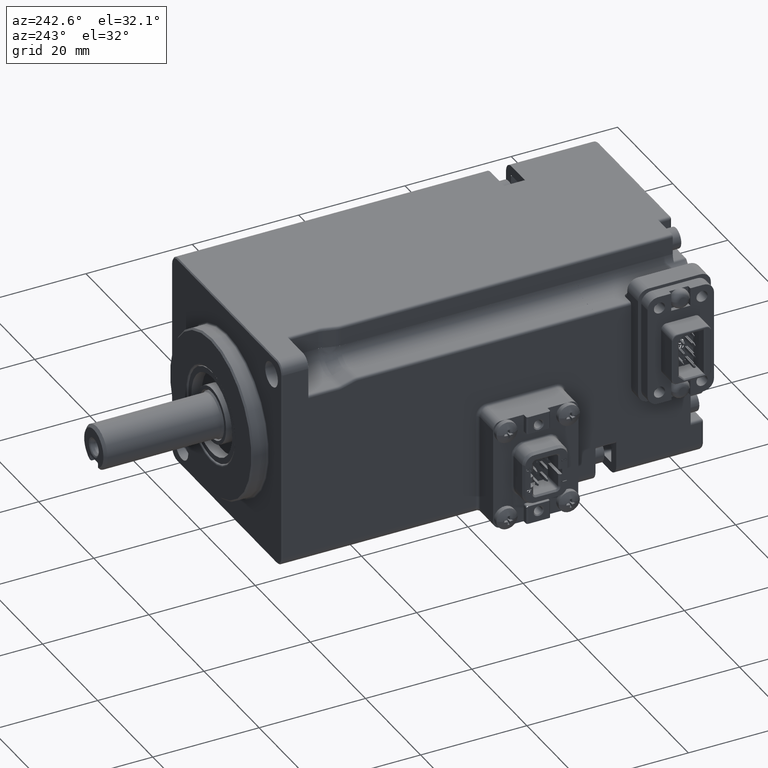
[diagram: clean part render]
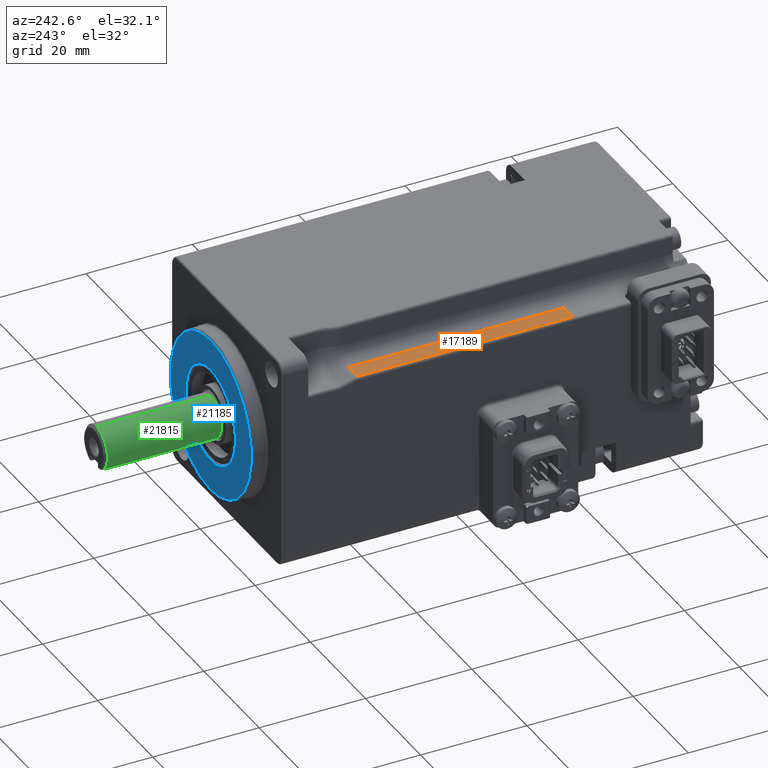
[diagram: same view with three faces highlighted in distinct colors, each labeled with its STEP entity id]
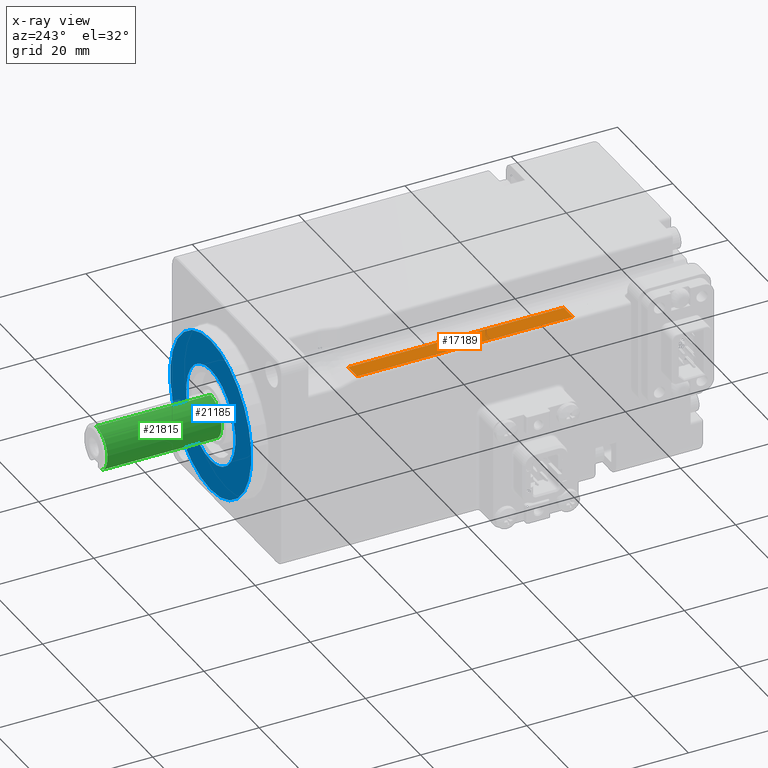
[diagram: x-ray of the same camera — body ghosted, the three highlighted faces saturated]
A machine part, auxiliary view with three faces highlighted in distinct colors.
The next image is the same camera in x-ray (body ghosted, the three faces saturated) — at least one of them is partly hidden behind the body in this view.
Their STEP definitions:

[orange] entity #17189 — the highlighted planar face has unit normal (0, 0, -1).
#49 = VERTEX_POINT ( 'NONE', #20849 ) ;
#589 = PLANE ( 'NONE',  #2665 ) ;
#941 = ORIENTED_EDGE ( 'NONE', *, *, #6150, .T. ) ;
#2293 = CARTESIAN_POINT ( 'NONE',  ( -16.26345596729059295, 5.000000000000004441, 13.50000000000000711 ) ) ;
#2466 = VECTOR ( 'NONE', #24351, 1000.000000000000000 ) ;
#2523 = VERTEX_POINT ( 'NONE', #5701 ) ;
#2665 = AXIS2_PLACEMENT_3D ( 'NONE', #2293, #10673, #14164 ) ;
#2795 = FACE_OUTER_BOUND ( 'NONE', #11733, .T. ) ;
#3090 = ORIENTED_EDGE ( 'NONE', *, *, #9576, .T. ) ;
#4329 = DIRECTION ( 'NONE',  ( 1.000000000000000000, 0.000000000000000000, 4.642588072805170962E-16 ) ) ;
#5701 = CARTESIAN_POINT ( 'NONE',  ( -19.50000000000000355, 0.000000000000000000, 13.50000000000000178 ) ) ;
#5926 = VERTEX_POINT ( 'NONE', #11231 ) ;
#6150 = EDGE_CURVE ( 'NONE', #5926, #49, #8954, .T. ) ;
#6868 = EDGE_CURVE ( 'NONE', #49, #7536, #14661, .T. ) ;
#6937 = CARTESIAN_POINT ( 'NONE',  ( -16.26345596729035847, 40.58792429793135170, 13.50000000000000711 ) ) ;
#7536 = VERTEX_POINT ( 'NONE', #7659 ) ;
#7659 = CARTESIAN_POINT ( 'NONE',  ( -19.50000000000000355, 40.58792429793137302, 13.50000000000000533 ) ) ;
#7691 = VECTOR ( 'NONE', #4329, 1000.000000000000000 ) ;
#8442 = CARTESIAN_POINT ( 'NONE',  ( 17.99999999999998934, 0.000000000000000000, 13.50000000000001954 ) ) ;
#8954 = LINE ( 'NONE', #24602, #2466 ) ;
#9576 = EDGE_CURVE ( 'NONE', #7536, #2523, #22353, .T. ) ;
#10584 = CARTESIAN_POINT ( 'NONE',  ( -19.50000000000000355, 5.000000000000004441, 13.50000000000000533 ) ) ;
#10673 = DIRECTION ( 'NONE',  ( 4.642588072805170962E-16, 0.000000000000000000, -1.000000000000000000 ) ) ;
#11231 = CARTESIAN_POINT ( 'NONE',  ( -16.26345596729059295, 0.000000000000000000, 13.50000000000000533 ) ) ;
#11733 = EDGE_LOOP ( 'NONE', ( #18944, #3090, #18710, #941 ) ) ;
#14164 = DIRECTION ( 'NONE',  ( -1.000000000000000000, 0.000000000000000000, -4.642588072805170962E-16 ) ) ;
#14661 = LINE ( 'NONE', #6937, #19351 ) ;
#16989 = DIRECTION ( 'NONE',  ( -1.000000000000000000, 6.648163704133970020E-15, -4.642588072805170962E-16 ) ) ;
#17189 = ADVANCED_FACE ( 'NONE', ( #2795 ), #589, .F. ) ;
#18253 = LINE ( 'NONE', #8442, #7691 ) ;
#18449 = DIRECTION ( 'NONE',  ( -0.000000000000000000, -1.000000000000000000, -0.000000000000000000 ) ) ;
#18710 = ORIENTED_EDGE ( 'NONE', *, *, #18813, .T. ) ;
#18813 = EDGE_CURVE ( 'NONE', #2523, #5926, #18253, .T. ) ;
#18944 = ORIENTED_EDGE ( 'NONE', *, *, #6868, .T. ) ;
#19351 = VECTOR ( 'NONE', #16989, 1000.000000000000000 ) ;
#20849 = CARTESIAN_POINT ( 'NONE',  ( -16.26345596729059295, 40.58792429793135170, 13.50000000000000711 ) ) ;
#22022 = VECTOR ( 'NONE', #18449, 1000.000000000000000 ) ;
#22353 = LINE ( 'NONE', #10584, #22022 ) ;
#24351 = DIRECTION ( 'NONE',  ( 0.000000000000000000, 1.000000000000000000, 0.000000000000000000 ) ) ;
#24602 = CARTESIAN_POINT ( 'NONE',  ( -16.26345596729059295, 5.000000000000004441, 13.50000000000000711 ) ) ;

[blue] entity #21185 — the highlighted planar face has unit normal (0, -1, 0).
#772 = FACE_OUTER_BOUND ( 'NONE', #2686, .T. ) ;
#2080 = CARTESIAN_POINT ( 'NONE',  ( 0.000000000000000000, 58.00000000000000000, 0.000000000000000000 ) ) ;
#2414 = AXIS2_PLACEMENT_3D ( 'NONE', #2080, #5955, #13696 ) ;
#2686 = EDGE_LOOP ( 'NONE', ( #10281, #20379 ) ) ;
#3025 = DIRECTION ( 'NONE',  ( -0.000000000000000000, -1.000000000000000000, 0.000000000000000000 ) ) ;
#4092 = VERTEX_POINT ( 'NONE', #23106 ) ;
#4354 = EDGE_CURVE ( 'NONE', #20743, #7928, #11536, .T. ) ;
#4745 = CARTESIAN_POINT ( 'NONE',  ( 0.000000000000000000, 58.00000000000000000, 0.000000000000000000 ) ) ;
#4797 = EDGE_CURVE ( 'NONE', #19180, #4092, #15656, .T. ) ;
#5955 = DIRECTION ( 'NONE',  ( 0.000000000000000000, 1.000000000000000000, -0.000000000000000000 ) ) ;
#6285 = CARTESIAN_POINT ( 'NONE',  ( 1.093419085830213283E-15, 58.00000000000000000, 8.928444402022641668 ) ) ;
#6665 = ORIENTED_EDGE ( 'NONE', *, *, #4354, .T. ) ;
#6996 = AXIS2_PLACEMENT_3D ( 'NONE', #8818, #3025, #24615 ) ;
#7382 = CIRCLE ( 'NONE', #2414, 14.69999999999998330 ) ;
#7878 = CARTESIAN_POINT ( 'NONE',  ( 0.000000000000000000, 58.00000000000000000, -8.928444402022641668 ) ) ;
#7928 = VERTEX_POINT ( 'NONE', #7878 ) ;
#8153 = AXIS2_PLACEMENT_3D ( 'NONE', #4745, #8737, #16605 ) ;
#8737 = DIRECTION ( 'NONE',  ( -0.000000000000000000, -1.000000000000000000, 0.000000000000000000 ) ) ;
#8818 = CARTESIAN_POINT ( 'NONE',  ( 0.000000000000000000, 58.00000000000000000, 0.000000000000000000 ) ) ;
#10281 = ORIENTED_EDGE ( 'NONE', *, *, #4797, .T. ) ;
#10593 = FACE_BOUND ( 'NONE', #21580, .T. ) ;
#11536 = CIRCLE ( 'NONE', #6996, 8.928444402022641668 ) ;
#11757 = DIRECTION ( 'NONE',  ( 0.000000000000000000, 0.000000000000000000, -1.000000000000000000 ) ) ;
#12662 = DIRECTION ( 'NONE',  ( 0.000000000000000000, -1.000000000000000000, 0.000000000000000000 ) ) ;
#13696 = DIRECTION ( 'NONE',  ( 0.000000000000000000, 0.000000000000000000, -1.000000000000000000 ) ) ;
#13912 = AXIS2_PLACEMENT_3D ( 'NONE', #14581, #12662, #18585 ) ;
#14283 = EDGE_CURVE ( 'NONE', #7928, #20743, #14322, .T. ) ;
#14322 = CIRCLE ( 'NONE', #8153, 8.928444402022641668 ) ;
#14581 = CARTESIAN_POINT ( 'NONE',  ( 18.00000000000000355, 58.00000000000000000, -18.00000000000000355 ) ) ;
#14718 = PLANE ( 'NONE',  #13912 ) ;
#15481 = EDGE_CURVE ( 'NONE', #4092, #19180, #7382, .T. ) ;
#15656 = CIRCLE ( 'NONE', #19774, 14.69999999999998330 ) ;
#16605 = DIRECTION ( 'NONE',  ( 0.000000000000000000, 0.000000000000000000, -1.000000000000000000 ) ) ;
#17557 = DIRECTION ( 'NONE',  ( 0.000000000000000000, 1.000000000000000000, -0.000000000000000000 ) ) ;
#18241 = ORIENTED_EDGE ( 'NONE', *, *, #14283, .T. ) ;
#18585 = DIRECTION ( 'NONE',  ( 0.000000000000000000, -0.000000000000000000, -1.000000000000000000 ) ) ;
#19180 = VERTEX_POINT ( 'NONE', #22135 ) ;
#19774 = AXIS2_PLACEMENT_3D ( 'NONE', #25227, #17557, #11757 ) ;
#20379 = ORIENTED_EDGE ( 'NONE', *, *, #15481, .T. ) ;
#20743 = VERTEX_POINT ( 'NONE', #6285 ) ;
#21185 = ADVANCED_FACE ( 'NONE', ( #10593, #772 ), #14718, .F. ) ;
#21580 = EDGE_LOOP ( 'NONE', ( #18241, #6665 ) ) ;
#22135 = CARTESIAN_POINT ( 'NONE',  ( 0.000000000000000000, 58.00000000000000000, -14.69999999999998330 ) ) ;
#23106 = CARTESIAN_POINT ( 'NONE',  ( 1.818600496733818370E-15, 58.00000000000000000, 14.69999999999998330 ) ) ;
#24615 = DIRECTION ( 'NONE',  ( 0.000000000000000000, 0.000000000000000000, -1.000000000000000000 ) ) ;
#25227 = CARTESIAN_POINT ( 'NONE',  ( 0.000000000000000000, 58.00000000000000000, 0.000000000000000000 ) ) ;

[green] entity #21815 — the highlighted cylindrical surface (edge-blend (fillet) strip) has radius 4 mm, axis along (0, 1, 0).
#248 = CIRCLE ( 'NONE', #3566, 4.000000000000000000 ) ;
#278 = DIRECTION ( 'NONE',  ( -1.656611318484115982E-16, -1.000000000000000000, -1.705532353475746316E-17 ) ) ;
#856 = ORIENTED_EDGE ( 'NONE', *, *, #11720, .T. ) ;
#950 = EDGE_CURVE ( 'NONE', #1896, #24904, #3973, .T. ) ;
#1114 = VECTOR ( 'NONE', #9270, 1000.000000000000000 ) ;
#1398 = CARTESIAN_POINT ( 'NONE',  ( -3.108624468950438313E-15, 80.00000000000000000, -4.000000000000000000 ) ) ;
#1896 = VERTEX_POINT ( 'NONE', #12269 ) ;
#1971 = EDGE_CURVE ( 'NONE', #22024, #24904, #2053, .T. ) ;
#2053 = B_SPLINE_CURVE_WITH_KNOTS ( 'NONE', 3,
 ( #23007, #25090, #7112, #10722, #15102, #13050, #5050, #3240, #4920, #16638, #24957, #11121, #18978, #12914 ),
 .UNSPECIFIED., .F., .F.,
 ( 4, 2, 2, 2, 2, 2, 4 ),
 ( 0.000000000000000000, 0.06254959109120410143, 0.1250991821824082029, 0.2501983643648163502, 0.3752975465472244698, 0.4378471376384270863, 0.5003967287296295918 ),
 .UNSPECIFIED. ) ;
#2729 = CARTESIAN_POINT ( 'NONE',  ( -1.640167532133011585, 80.00000000000000000, -3.648266775680844898 ) ) ;
#3240 = CARTESIAN_POINT ( 'NONE',  ( -1.009780202302519303, 65.24062777858266315, -3.873602713253483820 ) ) ;
#3381 = VERTEX_POINT ( 'NONE', #9067 ) ;
#3448 = ORIENTED_EDGE ( 'NONE', *, *, #1971, .T. ) ;
#3566 = AXIS2_PLACEMENT_3D ( 'NONE', #21984, #4409, #16267 ) ;
#3973 = LINE ( 'NONE', #1398, #1114 ) ;
#4235 = AXIS2_PLACEMENT_3D ( 'NONE', #25133, #7412, #24997 ) ;
#4409 = DIRECTION ( 'NONE',  ( 1.656611318484115982E-16, 1.000000000000000000, 1.705532353475746316E-17 ) ) ;
#4810 = VERTEX_POINT ( 'NONE', #19624 ) ;
#4920 = CARTESIAN_POINT ( 'NONE',  ( -0.8298643287301580296, 65.12403026724594213, -3.918116802540117849 ) ) ;
#5050 = CARTESIAN_POINT ( 'NONE',  ( -1.309108928461929278, 65.52831011143597095, -3.782946979605731119 ) ) ;
#6213 = ORIENTED_EDGE ( 'NONE', *, *, #8631, .T. ) ;
#6235 = CARTESIAN_POINT ( 'NONE',  ( 1.120393287165241152E-09, 64.92284821147454466, -3.999999999396791850 ) ) ;
#6278 = ORIENTED_EDGE ( 'NONE', *, *, #950, .F. ) ;
#6495 = DIRECTION ( 'NONE',  ( 1.656611318484115982E-16, 1.000000000000000000, 1.705532353475746316E-17 ) ) ;
#6688 = AXIS2_PLACEMENT_3D ( 'NONE', #11853, #11726, #25445 ) ;
#7112 = CARTESIAN_POINT ( 'NONE',  ( -1.629264850746768856, 66.29099116134379699, -3.653222267164686787 ) ) ;
#7412 = DIRECTION ( 'NONE',  ( -1.656611318484115982E-16, -1.000000000000000000, -1.705532353475746316E-17 ) ) ;
#8631 = EDGE_CURVE ( 'NONE', #15229, #4810, #25313, .T. ) ;
#9067 = CARTESIAN_POINT ( 'NONE',  ( -5.264199186831937342E-16, 58.05734907715176263, 4.000000000000000000 ) ) ;
#9165 = EDGE_LOOP ( 'NONE', ( #856, #21035, #6213, #10984, #3448, #6278 ) ) ;
#9270 = DIRECTION ( 'NONE',  ( 1.656611318484115982E-16, 1.000000000000000000, 1.705532353475746316E-17 ) ) ;
#10722 = CARTESIAN_POINT ( 'NONE',  ( -1.586832844033345458, 66.08782995957716366, -3.671852177346445423 ) ) ;
#10984 = ORIENTED_EDGE ( 'NONE', *, *, #24945, .T. ) ;
#11121 = CARTESIAN_POINT ( 'NONE',  ( -0.2160948840703945939, 64.93314338348770320, -3.995573254002946939 ) ) ;
#11720 = EDGE_CURVE ( 'NONE', #1896, #3381, #248, .T. ) ;
#11726 = DIRECTION ( 'NONE',  ( 1.656611318484115982E-16, 1.000000000000000000, 1.705532353475746316E-17 ) ) ;
#11784 = CARTESIAN_POINT ( 'NONE',  ( 7.598282725125784645E-16, 79.50000000000000000, 4.000000000000000000 ) ) ;
#11853 = CARTESIAN_POINT ( 'NONE',  ( 0.000000000000000000, 80.00000000000000000, 1.540743955509788682E-30 ) ) ;
#12269 = CARTESIAN_POINT ( 'NONE',  ( -7.255976188039585117E-15, 58.05734907715176263, -4.000000000000000000 ) ) ;
#12304 = LINE ( 'NONE', #12682, #24160 ) ;
#12560 = EDGE_CURVE ( 'NONE', #3381, #15229, #12304, .T. ) ;
#12682 = CARTESIAN_POINT ( 'NONE',  ( 2.618765749291496932E-15, 80.00000000000000000, 4.000000000000000000 ) ) ;
#12914 = CARTESIAN_POINT ( 'NONE',  ( 1.120393287165241152E-09, 64.92284821147454466, -3.999999999396791850 ) ) ;
#13050 = CARTESIAN_POINT ( 'NONE',  ( -1.431204434105821877, 65.70286656942806758, -3.736245161417662164 ) ) ;
#14910 = VECTOR ( 'NONE', #278, 1000.000000000000000 ) ;
#14916 = CARTESIAN_POINT ( 'NONE',  ( -1.640167532133013584, 66.50000000000000000, -3.648266775680845342 ) ) ;
#15102 = CARTESIAN_POINT ( 'NONE',  ( -1.554414280712020036, 65.98640223463316090, -3.685887241021326144 ) ) ;
#15229 = VERTEX_POINT ( 'NONE', #11784 ) ;
#16267 = DIRECTION ( 'NONE',  ( 7.771561172376095783E-16, 0.000000000000000000, 1.000000000000000000 ) ) ;
#16638 = CARTESIAN_POINT ( 'NONE',  ( -0.5324670303645308023, 65.00469672938253041, -3.965672374539565226 ) ) ;
#18978 = CARTESIAN_POINT ( 'NONE',  ( -0.1091573929882817262, 64.92284855885442596, -4.000000000030575542 ) ) ;
#19462 = CYLINDRICAL_SURFACE ( 'NONE', #6688, 4.000000000000000000 ) ;
#19624 = CARTESIAN_POINT ( 'NONE',  ( -1.640167532133011363, 79.50000000000000000, -3.648266775680844898 ) ) ;
#20404 = LINE ( 'NONE', #2729, #14910 ) ;
#21035 = ORIENTED_EDGE ( 'NONE', *, *, #12560, .T. ) ;
#21427 = FACE_OUTER_BOUND ( 'NONE', #9165, .T. ) ;
#21815 = ADVANCED_FACE ( 'NONE', ( #21427 ), #19462, .T. ) ;
#21984 = CARTESIAN_POINT ( 'NONE',  ( -3.635044387633631850E-15, 58.05734907715176263, -3.742390106994195341E-16 ) ) ;
#22024 = VERTEX_POINT ( 'NONE', #14916 ) ;
#23007 = CARTESIAN_POINT ( 'NONE',  ( -1.640167532133013584, 66.50000000000000000, -3.648266775680845342 ) ) ;
#24160 = VECTOR ( 'NONE', #6495, 1000.000000000000000 ) ;
#24904 = VERTEX_POINT ( 'NONE', #6235 ) ;
#24945 = EDGE_CURVE ( 'NONE', #4810, #22024, #20404, .T. ) ;
#24957 = CARTESIAN_POINT ( 'NONE',  ( -0.4280321792401324821, 64.97396140806205267, -3.978453352819415922 ) ) ;
#24997 = DIRECTION ( 'NONE',  ( 7.771561172376095783E-16, 0.000000000000000000, 1.000000000000000000 ) ) ;
#25090 = CARTESIAN_POINT ( 'NONE',  ( -1.640127999639769296, 66.39368204703555421, -3.648284548479787226 ) ) ;
#25133 = CARTESIAN_POINT ( 'NONE',  ( -8.283056592420529374E-17, 79.50000000000000000, -8.527661767377136910E-18 ) ) ;
#25313 = CIRCLE ( 'NONE', #4235, 4.000000000000000000 ) ;
#25445 = DIRECTION ( 'NONE',  ( -7.771561172376095783E-16, 0.000000000000000000, -1.000000000000000000 ) ) ;